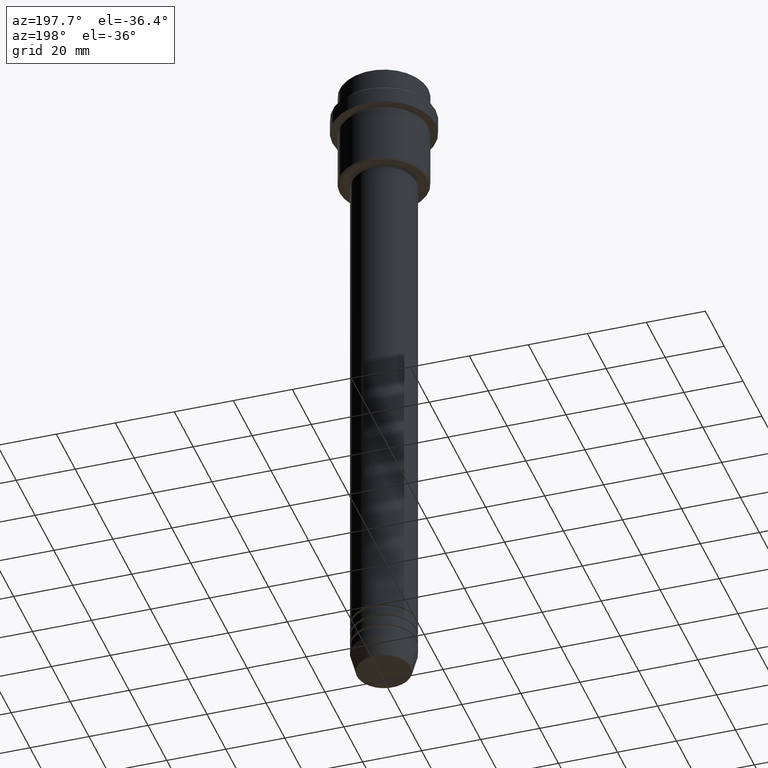
[diagram: clean part render]
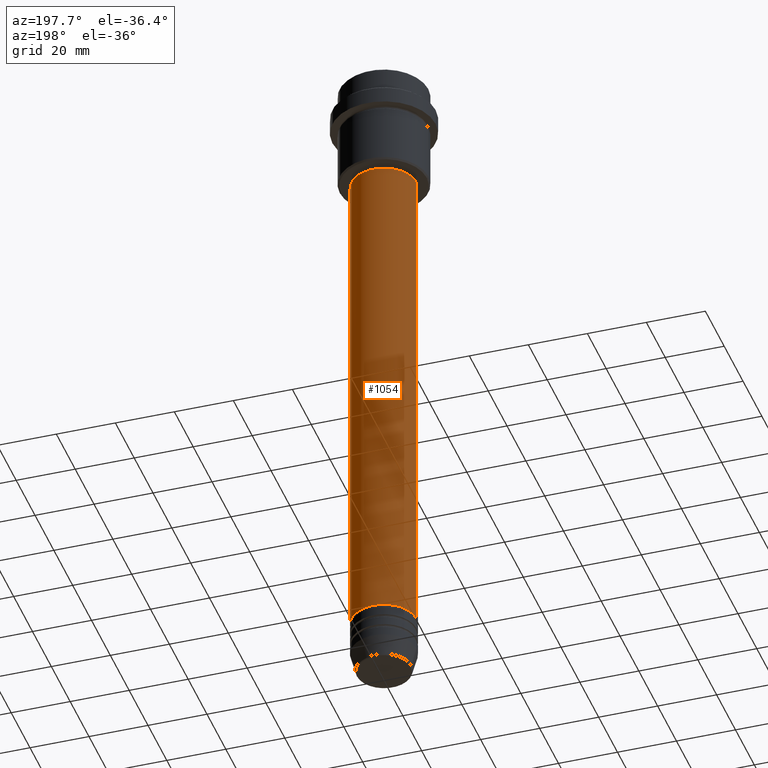
[diagram: same view with one face highlighted and labeled with its STEP entity id]
A machine part, auxiliary view. The second image highlights one B-rep face of the part: STEP entity #1054.
In plain terms, the highlighted cylindrical surface (edge-blend (fillet) strip) has radius 11 mm, axis along (-0, -0, 1).
Its self-contained STEP definition (entity closure, byte-faithful):
#19 = CARTESIAN_POINT ( 'NONE',  ( 0.000000000000000000, 0.000000000000000000, -37.00000000000001421 ) ) ;
#35 = LINE ( 'NONE', #583, #1344 ) ;
#46 = CARTESIAN_POINT ( 'NONE',  ( -11.00000000000000000, 1.347111479062088405E-15, -211.9999999999999432 ) ) ;
#161 = ORIENTED_EDGE ( 'NONE', *, *, #1394, .T. ) ;
#162 = DIRECTION ( 'NONE',  ( -0.000000000000000000, -0.000000000000000000, 1.000000000000000000 ) ) ;
#194 = DIRECTION ( 'NONE',  ( 1.000000000000000000, 0.000000000000000000, 0.000000000000000000 ) ) ;
#280 = CARTESIAN_POINT ( 'NONE',  ( 0.000000000000000000, 0.000000000000000000, 0.000000000000000000 ) ) ;
#368 = DIRECTION ( 'NONE',  ( -0.000000000000000000, -0.000000000000000000, 1.000000000000000000 ) ) ;
#376 = FACE_OUTER_BOUND ( 'NONE', #1189, .T. ) ;
#396 = LINE ( 'NONE', #601, #719 ) ;
#475 = EDGE_CURVE ( 'NONE', #1020, #1149, #35, .T. ) ;
#489 = DIRECTION ( 'NONE',  ( -0.000000000000000000, -0.000000000000000000, 1.000000000000000000 ) ) ;
#513 = VERTEX_POINT ( 'NONE', #786 ) ;
#583 = CARTESIAN_POINT ( 'NONE',  ( -11.00000000000000000, 1.347111479062088405E-15, 0.000000000000000000 ) ) ;
#601 = CARTESIAN_POINT ( 'NONE',  ( 11.00000000000000000, 0.000000000000000000, 0.000000000000000000 ) ) ;
#686 = DIRECTION ( 'NONE',  ( -0.000000000000000000, -0.000000000000000000, 1.000000000000000000 ) ) ;
#699 = CIRCLE ( 'NONE', #725, 11.00000000000000000 ) ;
#703 = EDGE_CURVE ( 'NONE', #513, #1057, #396, .T. ) ;
#719 = VECTOR ( 'NONE', #831, 1000.000000000000000 ) ;
#725 = AXIS2_PLACEMENT_3D ( 'NONE', #1030, #489, #194 ) ;
#786 = CARTESIAN_POINT ( 'NONE',  ( 11.00000000000000000, 0.000000000000000000, -211.9999999999999432 ) ) ;
#795 = AXIS2_PLACEMENT_3D ( 'NONE', #280, #162, #933 ) ;
#829 = CARTESIAN_POINT ( 'NONE',  ( -10.99999999999999822, 1.347111479062088207E-15, -37.00000000000001421 ) ) ;
#830 = ORIENTED_EDGE ( 'NONE', *, *, #1006, .F. ) ;
#831 = DIRECTION ( 'NONE',  ( -0.000000000000000000, -0.000000000000000000, 1.000000000000000000 ) ) ;
#933 = DIRECTION ( 'NONE',  ( 1.000000000000000000, 0.000000000000000000, 0.000000000000000000 ) ) ;
#1006 = EDGE_CURVE ( 'NONE', #1057, #1149, #1250, .T. ) ;
#1009 = DIRECTION ( 'NONE',  ( 1.000000000000000000, 0.000000000000000000, 0.000000000000000000 ) ) ;
#1020 = VERTEX_POINT ( 'NONE', #46 ) ;
#1030 = CARTESIAN_POINT ( 'NONE',  ( 0.000000000000000000, 0.000000000000000000, -211.9999999999999432 ) ) ;
#1054 = ADVANCED_FACE ( 'NONE', ( #376 ), #1259, .T. ) ;
#1057 = VERTEX_POINT ( 'NONE', #1391 ) ;
#1149 = VERTEX_POINT ( 'NONE', #829 ) ;
#1159 = AXIS2_PLACEMENT_3D ( 'NONE', #19, #686, #1009 ) ;
#1189 = EDGE_LOOP ( 'NONE', ( #161, #1381, #830, #1312 ) ) ;
#1250 = CIRCLE ( 'NONE', #1159, 10.99999999999999822 ) ;
#1259 = CYLINDRICAL_SURFACE ( 'NONE', #795, 11.00000000000000000 ) ;
#1312 = ORIENTED_EDGE ( 'NONE', *, *, #703, .F. ) ;
#1344 = VECTOR ( 'NONE', #368, 1000.000000000000000 ) ;
#1381 = ORIENTED_EDGE ( 'NONE', *, *, #475, .T. ) ;
#1391 = CARTESIAN_POINT ( 'NONE',  ( 10.99999999999999822, 0.000000000000000000, -37.00000000000001421 ) ) ;
#1394 = EDGE_CURVE ( 'NONE', #513, #1020, #699, .T. ) ;